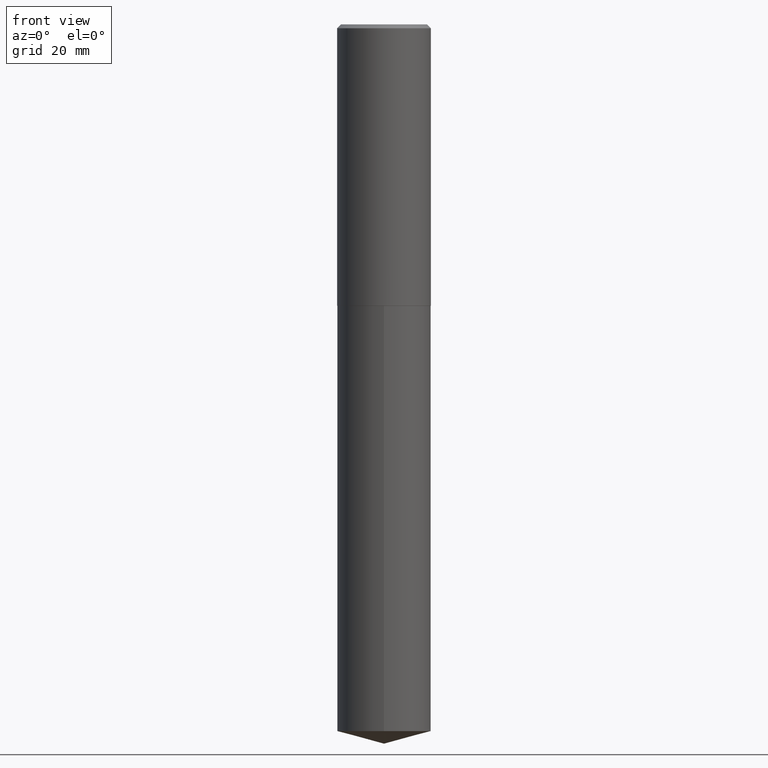
[diagram: clean part render]
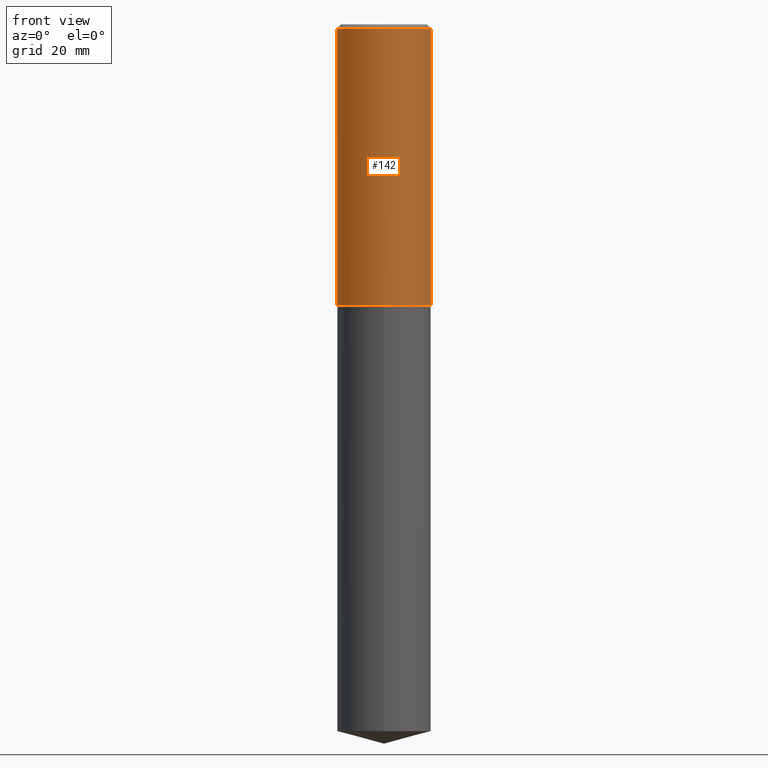
[diagram: same view with one face highlighted and labeled with its STEP entity id]
A machine part, front view. The second image highlights one B-rep face of the part: STEP entity #142.
In plain terms, the highlighted cylindrical surface (partial cylindrical patch) has radius 9.525 mm, axis along (-0, 0, 1).
Its self-contained STEP definition (entity closure, byte-faithful):
#13 = ORIENTED_EDGE ( 'NONE', *, *, #47, .F. ) ;
#22 = CARTESIAN_POINT ( 'NONE',  ( 5.501082079513463420E-29, -7.854087271727654578E-15, -2.249499999999999389 ) ) ;
#24 = CARTESIAN_POINT ( 'NONE',  ( 0.3750000000000002220, -1.047269827586000775E-14, -2.249499999999999389 ) ) ;
#33 = CIRCLE ( 'NONE', #268, 0.3750000000000000555 ) ;
#46 = CARTESIAN_POINT ( 'NONE',  ( 0.3750000000000001110, -2.618611004132350411E-15, 1.828566290923476483E-29 ) ) ;
#47 = EDGE_CURVE ( 'NONE', #267, #179, #33, .T. ) ;
#51 = LINE ( 'NONE', #261, #355 ) ;
#57 = CARTESIAN_POINT ( 'NONE',  ( -0.3750000000000000555, -1.317062772682874959E-15, -0.03125000000000015959 ) ) ;
#79 = EDGE_CURVE ( 'NONE', #212, #179, #322, .T. ) ;
#80 = AXIS2_PLACEMENT_3D ( 'NONE', #22, #168, #326 ) ;
#84 = ORIENTED_EDGE ( 'NONE', *, *, #127, .T. ) ;
#107 = FACE_OUTER_BOUND ( 'NONE', #184, .T. ) ;
#108 = DIRECTION ( 'NONE',  ( -2.445468806185136877E-29, 3.491481338843145188E-15, 1.000000000000000000 ) ) ;
#110 = DIRECTION ( 'NONE',  ( 1.000000000000000000, -6.982962677686265922E-15, 0.000000000000000000 ) ) ;
#112 = DIRECTION ( 'NONE',  ( -2.445468806185136597E-29, 3.491481338843145583E-15, 1.000000000000000000 ) ) ;
#127 = EDGE_CURVE ( 'NONE', #274, #212, #360, .T. ) ;
#142 = ADVANCED_FACE ( 'NONE', ( #107 ), #380, .T. ) ;
#145 = CARTESIAN_POINT ( 'NONE',  ( -0.3750000000000002220, -5.189552012627277303E-15, -2.249499999999999389 ) ) ;
#157 = ORIENTED_EDGE ( 'NONE', *, *, #169, .F. ) ;
#168 = DIRECTION ( 'NONE',  ( -2.445468806185136597E-29, 3.491481338843145583E-15, 1.000000000000000000 ) ) ;
#169 = EDGE_CURVE ( 'NONE', #274, #267, #51, .T. ) ;
#179 = VERTEX_POINT ( 'NONE', #311 ) ;
#184 = EDGE_LOOP ( 'NONE', ( #157, #84, #318, #13 ) ) ;
#199 = VECTOR ( 'NONE', #290, 39.37007874015748143 ) ;
#212 = VERTEX_POINT ( 'NONE', #24 ) ;
#261 = CARTESIAN_POINT ( 'NONE',  ( -0.3750000000000001110, 2.664535259100376486E-15, -1.844600658845590159E-29 ) ) ;
#263 = DIRECTION ( 'NONE',  ( 1.000000000000000000, -6.982962677686265922E-15, 4.876176775795935793E-29 ) ) ;
#267 = VERTEX_POINT ( 'NONE', #57 ) ;
#268 = AXIS2_PLACEMENT_3D ( 'NONE', #381, #112, #110 ) ;
#274 = VERTEX_POINT ( 'NONE', #145 ) ;
#290 = DIRECTION ( 'NONE',  ( -2.445468806185136877E-29, 3.491481338843145188E-15, 1.000000000000000000 ) ) ;
#311 = CARTESIAN_POINT ( 'NONE',  ( 0.3750000000000000555, -2.727719795971198723E-15, -0.03125000000000015959 ) ) ;
#318 = ORIENTED_EDGE ( 'NONE', *, *, #79, .T. ) ;
#322 = LINE ( 'NONE', #46, #199 ) ;
#323 = DIRECTION ( 'NONE',  ( -2.445468806185136597E-29, 3.491481338843145583E-15, 1.000000000000000000 ) ) ;
#326 = DIRECTION ( 'NONE',  ( 1.000000000000000000, -6.982962677686269077E-15, 0.000000000000000000 ) ) ;
#349 = AXIS2_PLACEMENT_3D ( 'NONE', #379, #323, #263 ) ;
#355 = VECTOR ( 'NONE', #108, 39.37007874015748143 ) ;
#360 = CIRCLE ( 'NONE', #80, 0.3750000000000002220 ) ;
#379 = CARTESIAN_POINT ( 'NONE',  ( 0.000000000000000000, 0.000000000000000000, 0.000000000000000000 ) ) ;
#380 = CYLINDRICAL_SURFACE ( 'NONE', #349, 0.3750000000000001110 ) ;
#381 = CARTESIAN_POINT ( 'NONE',  ( 7.642090019328590401E-31, -1.091087918388488418E-16, -0.03125000000000015959 ) ) ;